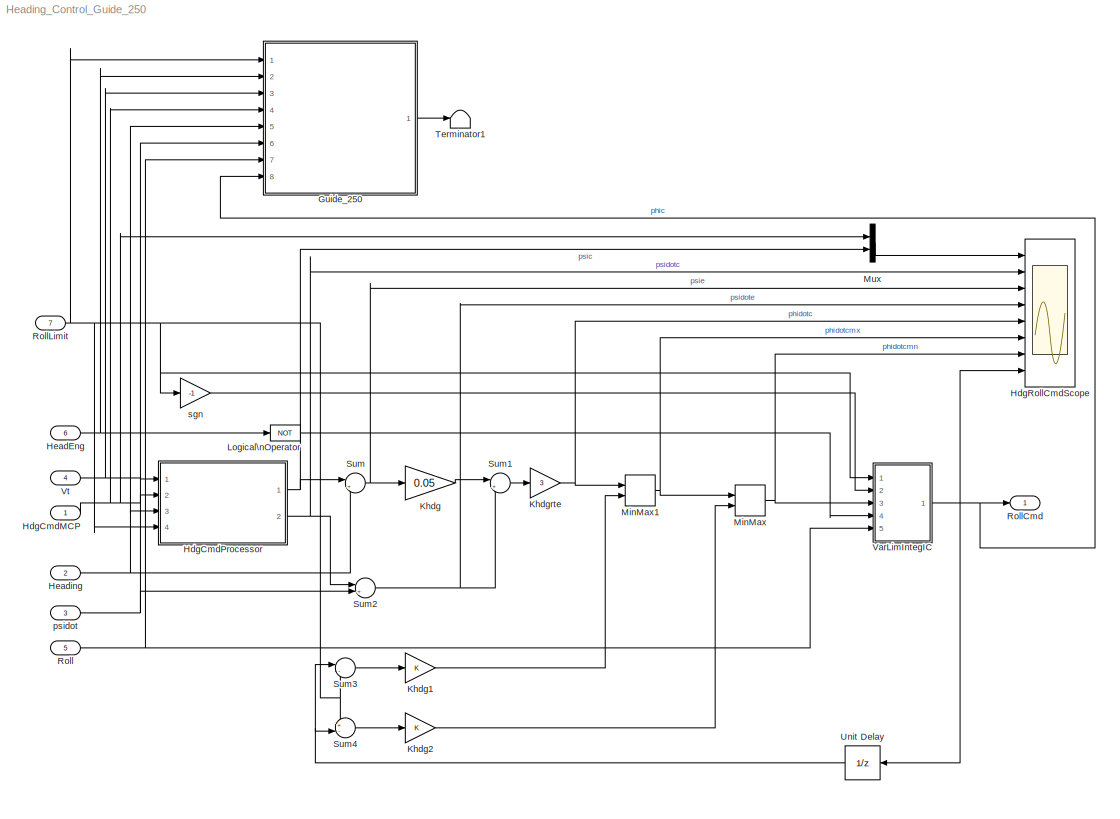
MODEL Heading_Control_Guide_250
KIND model
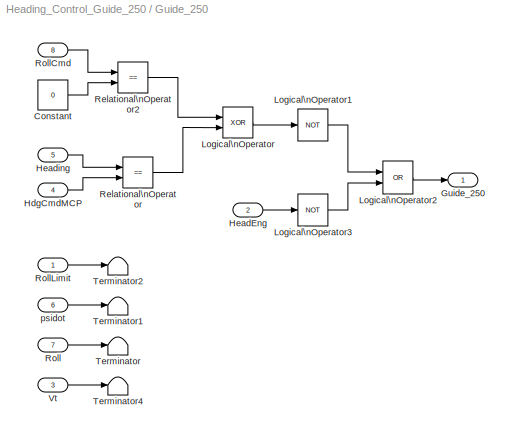
BLOCK [SubSystem] Guide_250
  Ports = [8, 1]
  RequestExecContextInheritance = off
  SID = 8
  TreatAsAtomicUnit = on
  Variant = off
BLOCK [Constant] Guide_250/Constant
  SID = 17
  Value = 0
BLOCK [Outport] Guide_250/Guide_250
  IconDisplay = Port number
  SID = 28
BLOCK [Inport] Guide_250/HdgCmdMCP
  IconDisplay = Port number
  Port = 4
  SID = 12
BLOCK [Inport] Guide_250/HeadEng
  IconDisplay = Port number
  Port = 2
  SID = 10
BLOCK [Inport] Guide_250/Heading
  IconDisplay = Port number
  Port = 5
  SID = 13
BLOCK [Logic] Guide_250/Logical\nOperator
  AllPortsSameDT = off
  Operator = XOR
  OutDataTypeStr = boolean
  Ports = [2, 1]
  SID = 18
BLOCK [Logic] Guide_250/Logical\nOperator1
  AllPortsSameDT = off
  Operator = NOT
  OutDataTypeStr = boolean
  Ports = [1, 1]
  SID = 19
BLOCK [Logic] Guide_250/Logical\nOperator2
  AllPortsSameDT = off
  Operator = OR
  OutDataTypeStr = boolean
  Ports = [2, 1]
  SID = 20
BLOCK [Logic] Guide_250/Logical\nOperator3
  AllPortsSameDT = off
  Operator = NOT
  OutDataTypeStr = boolean
  Ports = [1, 1]
  SID = 21
BLOCK [RelationalOperator] Guide_250/Relational\nOperator
  InputSameDT = off
  Operator = ==
  OutDataTypeStr = boolean
  Ports = [2, 1]
  SID = 22
BLOCK [RelationalOperator] Guide_250/Relational\nOperator2
  InputSameDT = off
  Operator = ==
  OutDataTypeStr = boolean
  Ports = [2, 1]
  SID = 23
BLOCK [Inport] Guide_250/Roll
  IconDisplay = Port number
  Port = 7
  SID = 15
BLOCK [Inport] Guide_250/RollCmd
  IconDisplay = Port number
  Port = 8
  SID = 16
BLOCK [Inport] Guide_250/RollLimit
  IconDisplay = Port number
  SID = 9
BLOCK [Terminator] Guide_250/Terminator
  SID = 24
BLOCK [Terminator] Guide_250/Terminator1
  SID = 25
BLOCK [Terminator] Guide_250/Terminator2
  SID = 26
BLOCK [Terminator] Guide_250/Terminator4
  SID = 27
BLOCK [Inport] Guide_250/Vt
  IconDisplay = Port number
  Port = 3
  SID = 11
BLOCK [Inport] Guide_250/psidot
  IconDisplay = Port number
  Port = 6
  SID = 14
BLOCK [Inport] HdgCmdMCP
  IconDisplay = Port number
  SID = 1
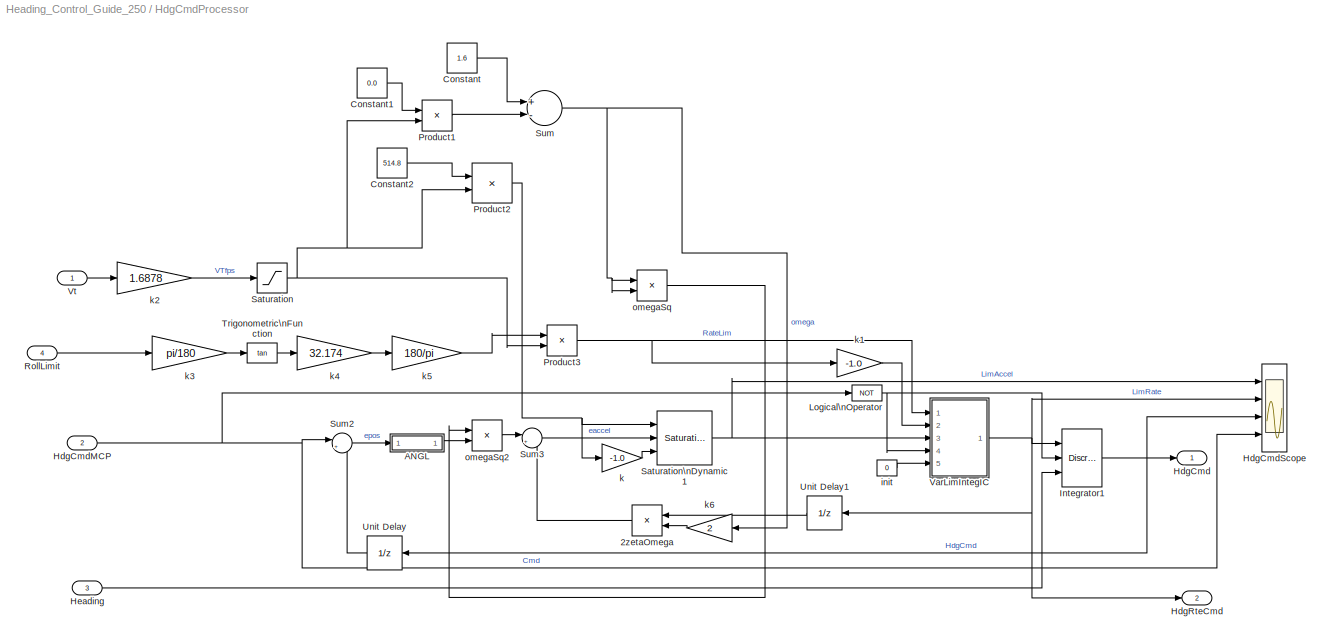
BLOCK [SubSystem] HdgCmdProcessor
  Ports = [4, 2]
  RequestExecContextInheritance = off
  SID = 29
  Variant = off
BLOCK [Product] HdgCmdProcessor/2zetaOmega
  InputSameDT = off
  OutDataTypeStr = Inherit: Inherit via internal rule
  Ports = [2, 1]
  SID = 34
  SaturateOnIntegerOverflow = off
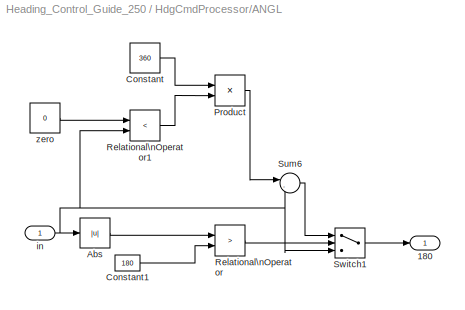
BLOCK [SubSystem] HdgCmdProcessor/ANGL
  Ports = [1, 1]
  RequestExecContextInheritance = off
  SID = 35
  Variant = off
BLOCK [Outport] HdgCmdProcessor/ANGL/180
  IconDisplay = Port number
  SID = 46
BLOCK [Abs] HdgCmdProcessor/ANGL/Abs
  SID = 37
  SaturateOnIntegerOverflow = off
BLOCK [Constant] HdgCmdProcessor/ANGL/Constant
  SID = 38
  Value = 360
BLOCK [Constant] HdgCmdProcessor/ANGL/Constant1
  SID = 39
  Value = 180
BLOCK [Product] HdgCmdProcessor/ANGL/Product
  InputSameDT = off
  OutDataTypeStr = Inherit: Inherit via internal rule
  Ports = [2, 1]
  SID = 40
  SaturateOnIntegerOverflow = off
BLOCK [RelationalOperator] HdgCmdProcessor/ANGL/Relational\nOperator
  InputSameDT = off
  Operator = >
  Ports = [2, 1]
  SID = 41
BLOCK [RelationalOperator] HdgCmdProcessor/ANGL/Relational\nOperator1
  InputSameDT = off
  Operator = <
  OutDataTypeStr = boolean
  Ports = [2, 1]
  SID = 42
BLOCK [Sum] HdgCmdProcessor/ANGL/Sum6
  IconShape = round
  InputSameDT = off
  Inputs = |-+
  OutDataTypeStr = Inherit: Inherit via internal rule
  Ports = [2, 1]
  SID = 43
BLOCK [Switch] HdgCmdProcessor/ANGL/Switch1
  InputSameDT = off
  SID = 44
  Threshold = 0.1
BLOCK [Inport] HdgCmdProcessor/ANGL/in
  IconDisplay = Port number
  SID = 36
BLOCK [Constant] HdgCmdProcessor/ANGL/zero
  SID = 45
  Value = 0
BLOCK [Constant] HdgCmdProcessor/Constant
  SID = 47
  Value = 1.6
BLOCK [Constant] HdgCmdProcessor/Constant1
  SID = 48
  Value = 0.0
BLOCK [Constant] HdgCmdProcessor/Constant2
  SID = 49
  Value = 514.8
BLOCK [Outport] HdgCmdProcessor/HdgCmd
  IconDisplay = Port number
  SID = 93
BLOCK [Inport] HdgCmdProcessor/HdgCmdMCP
  IconDisplay = Port number
  Port = 2
  SID = 31
BLOCK [Scope] HdgCmdProcessor/HdgCmdScope
  NumInputPorts = 4
  Ports = [4]
  SID = 50
  ScopeSpecificationString = C++SS(StrPVP('Location','[661, 662, 1361, 1168]'),StrPVP('Open','off'),MxPVP('AxesTitles',24,'struct(''axes1'',''%<SignalLabel>'',''axes2'',''%<SignalLabel>'',''axes3'',''%<SignalLabel>'',''axes4'',''%<SignalLabel>'')'),StrPVP('YMin','-2~-4~-40~-40'),StrPVP('YMax','2~4~40~40'),StrPVP('SaveName','ScopeData6'),StrPVP('DataFormat','StructureWithTime'),StrPVP('LimitDataPoints','off'),StrPVP('BlockPara...<+81ch>
BLOCK [Outport] HdgCmdProcessor/HdgRteCmd
  IconDisplay = Port number
  Port = 2
  SID = 94
BLOCK [Inport] HdgCmdProcessor/Heading
  IconDisplay = Port number
  Port = 3
  SID = 32
BLOCK [DiscreteIntegrator] HdgCmdProcessor/Integrator1
  ExternalReset = level
  ICPrevOutput = DiscIntNeverNeededParam
  ICPrevScaledInput = DiscIntNeverNeededParam
  InitialConditionSource = external
  Ports = [3, 1]
  SID = 51
  SampleTime = 1.0
BLOCK [Logic] HdgCmdProcessor/Logical\nOperator
  AllPortsSameDT = off
  Operator = NOT
  OutDataTypeStr = boolean
  Ports = [1, 1]
  SID = 52
BLOCK [Product] HdgCmdProcessor/Product1
  InputSameDT = off
  OutDataTypeStr = Inherit: Inherit via internal rule
  Ports = [2, 1]
  SID = 53
  SaturateOnIntegerOverflow = off
BLOCK [Product] HdgCmdProcessor/Product2
  InputSameDT = off
  Inputs = */
  OutDataTypeStr = Inherit: Inherit via internal rule
  Ports = [2, 1]
  SID = 54
  SaturateOnIntegerOverflow = off
BLOCK [Product] HdgCmdProcessor/Product3
  InputSameDT = off
  Inputs = /*
  OutDataTypeStr = Inherit: Inherit via internal rule
  Ports = [2, 1]
  SID = 55
  SaturateOnIntegerOverflow = off
BLOCK [Inport] HdgCmdProcessor/RollLimit
  IconDisplay = Port number
  Port = 4
  SID = 33
BLOCK [Saturate] HdgCmdProcessor/Saturation
  InputPortMap = u0
  LowerLimit = 0.0001
  Ports = [1, 1]
  SID = 56
  UpperLimit = 1000
BLOCK [Reference] HdgCmdProcessor/Saturation\nDynamic1  REF=simulink/Discontinuities/Saturation\nDynamic
  DoSatur = off
  LockScale = off
  OutDataType = fixdt(1, 16)
  OutDataTypeStr = Inherit: Same as second input
  OutMax = []
  OutMin = []
  OutScaling = 2^-10
  OutputDataTypeScalingMode = Same as second input
  Ports = [3, 1]
  RndMeth = Floor
  SID = 57
  SourceBlock = simulink/Discontinuities/Saturation\nDynamic
  SourceType = Saturation Dynamic
BLOCK [Sum] HdgCmdProcessor/Sum
  InputSameDT = off
  Inputs = +-
  OutDataTypeStr = Inherit: Inherit via internal rule
  Ports = [2, 1]
  SID = 58
  SaturateOnIntegerOverflow = off
BLOCK [Sum] HdgCmdProcessor/Sum2
  IconShape = round
  InputSameDT = off
  Inputs = |+-
  OutDataTypeStr = Inherit: Inherit via internal rule
  Ports = [2, 1]
  SID = 59
  SaturateOnIntegerOverflow = off
BLOCK [Sum] HdgCmdProcessor/Sum3
  IconShape = round
  InputSameDT = off
  Inputs = |+-
  OutDataTypeStr = Inherit: Inherit via internal rule
  Ports = [2, 1]
  SID = 60
  SaturateOnIntegerOverflow = off
BLOCK [Trigonometry] HdgCmdProcessor/Trigonometric\nFunction
  Operator = tan
  Ports = [1, 1]
  SID = 61
BLOCK [UnitDelay] HdgCmdProcessor/Unit Delay
  InputProcessing = Elements as channels (sample based)
  SID = 134
  SampleTime = -1
BLOCK [UnitDelay] HdgCmdProcessor/Unit Delay1
  InputProcessing = Elements as channels (sample based)
  SID = 135
  SampleTime = -1
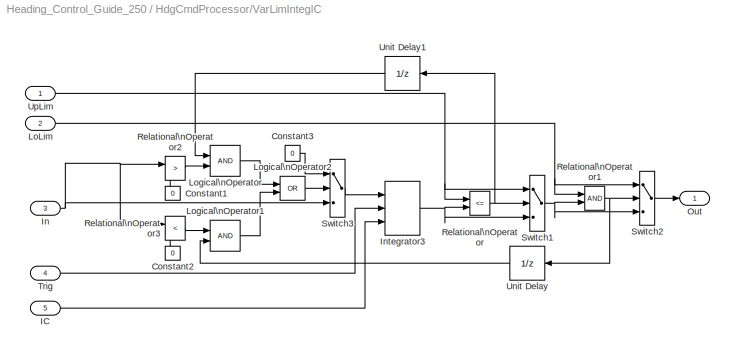
BLOCK [SubSystem] HdgCmdProcessor/VarLimIntegIC
  Ports = [5, 1]
  RequestExecContextInheritance = off
  SID = 62
  Variant = off
BLOCK [Constant] HdgCmdProcessor/VarLimIntegIC/Constant1
  SID = 68
  Value = 0
BLOCK [Constant] HdgCmdProcessor/VarLimIntegIC/Constant2
  SID = 69
  Value = 0
BLOCK [Constant] HdgCmdProcessor/VarLimIntegIC/Constant3
  SID = 70
  Value = 0
BLOCK [Inport] HdgCmdProcessor/VarLimIntegIC/IC
  IconDisplay = Port number
  Port = 5
  SID = 67
BLOCK [Inport] HdgCmdProcessor/VarLimIntegIC/In
  IconDisplay = Port number
  Port = 3
  SID = 65
BLOCK [DiscreteIntegrator] HdgCmdProcessor/VarLimIntegIC/Integrator3
  ExternalReset = level
  ICPrevOutput = DiscIntNeverNeededParam
  ICPrevScaledInput = DiscIntNeverNeededParam
  InitialConditionSource = external
  Ports = [3, 1]
  SID = 71
  SampleTime = 1.0
BLOCK [Inport] HdgCmdProcessor/VarLimIntegIC/LoLim
  IconDisplay = Port number
  Port = 2
  SID = 64
BLOCK [Logic] HdgCmdProcessor/VarLimIntegIC/Logical\nOperator
  AllPortsSameDT = off
  Ports = [2, 1]
  SID = 72
BLOCK [Logic] HdgCmdProcessor/VarLimIntegIC/Logical\nOperator1
  AllPortsSameDT = off
  Ports = [2, 1]
  SID = 73
BLOCK [Logic] HdgCmdProcessor/VarLimIntegIC/Logical\nOperator2
  AllPortsSameDT = off
  Operator = OR
  Ports = [2, 1]
  SID = 74
BLOCK [Outport] HdgCmdProcessor/VarLimIntegIC/Out
  IconDisplay = Port number
  SID = 82
BLOCK [RelationalOperator] HdgCmdProcessor/VarLimIntegIC/Relational\nOperator
  InputSameDT = off
  Operator = <=
  Ports = [2, 1]
  SID = 75
BLOCK [RelationalOperator] HdgCmdProcessor/VarLimIntegIC/Relational\nOperator1
  InputSameDT = off
  Ports = [2, 1]
  SID = 76
BLOCK [RelationalOperator] HdgCmdProcessor/VarLimIntegIC/Relational\nOperator2
  InputSameDT = off
  Operator = >
  Ports = [2, 1]
  SID = 77
BLOCK [RelationalOperator] HdgCmdProcessor/VarLimIntegIC/Relational\nOperator3
  InputSameDT = off
  Operator = <
  Ports = [2, 1]
  SID = 78
BLOCK [Switch] HdgCmdProcessor/VarLimIntegIC/Switch1
  SID = 79
  Threshold = 0.5
BLOCK [Switch] HdgCmdProcessor/VarLimIntegIC/Switch2
  SID = 80
  Threshold = 0.5
BLOCK [Switch] HdgCmdProcessor/VarLimIntegIC/Switch3
  SID = 81
  Threshold = 0.5
BLOCK [Inport] HdgCmdProcessor/VarLimIntegIC/Trig
  IconDisplay = Port number
  Port = 4
  SID = 66
BLOCK [UnitDelay] HdgCmdProcessor/VarLimIntegIC/Unit Delay
  InputProcessing = Elements as channels (sample based)
  SID = 136
  SampleTime = -1
BLOCK [UnitDelay] HdgCmdProcessor/VarLimIntegIC/Unit Delay1
  InputProcessing = Elements as channels (sample based)
  SID = 137
  SampleTime = -1
BLOCK [Inport] HdgCmdProcessor/VarLimIntegIC/UpLim
  IconDisplay = Port number
  SID = 63
BLOCK [Inport] HdgCmdProcessor/Vt
  IconDisplay = Port number
  SID = 30
BLOCK [Constant] HdgCmdProcessor/init
  SID = 83
  Value = 0
BLOCK [Gain] HdgCmdProcessor/k
  Gain = -1.0
  OutDataTypeStr = Inherit: Inherit via internal rule
  ParamDataTypeStr = Inherit: Inherit via internal rule
  SID = 84
  SaturateOnIntegerOverflow = off
BLOCK [Gain] HdgCmdProcessor/k1
  Gain = -1.0
  OutDataTypeStr = Inherit: Inherit via internal rule
  ParamDataTypeStr = Inherit: Inherit via internal rule
  SID = 85
  SaturateOnIntegerOverflow = off
BLOCK [Gain] HdgCmdProcessor/k2
  Gain = 1.6878
  OutDataTypeStr = Inherit: Inherit via internal rule
  ParamDataTypeStr = Inherit: Inherit via internal rule
  SID = 86
  SaturateOnIntegerOverflow = off
BLOCK [Gain] HdgCmdProcessor/k3
  Gain = pi/180
  OutDataTypeStr = Inherit: Inherit via internal rule
  ParamDataTypeStr = Inherit: Inherit via internal rule
  SID = 87
  SaturateOnIntegerOverflow = off
BLOCK [Gain] HdgCmdProcessor/k4
  Gain = 32.174
  OutDataTypeStr = Inherit: Inherit via internal rule
  ParamDataTypeStr = Inherit: Inherit via internal rule
  SID = 88
  SaturateOnIntegerOverflow = off
BLOCK [Gain] HdgCmdProcessor/k5
  Gain = 180/pi
  OutDataTypeStr = Inherit: Inherit via internal rule
  ParamDataTypeStr = Inherit: Inherit via internal rule
  SID = 89
  SaturateOnIntegerOverflow = off
BLOCK [Gain] HdgCmdProcessor/k6
  Gain = 2
  OutDataTypeStr = Inherit: Inherit via internal rule
  ParamDataTypeStr = Inherit: Inherit via internal rule
  SID = 90
  SaturateOnIntegerOverflow = off
BLOCK [Product] HdgCmdProcessor/omegaSq
  InputSameDT = off
  OutDataTypeStr = Inherit: Inherit via internal rule
  Ports = [2, 1]
  SID = 91
  SaturateOnIntegerOverflow = off
BLOCK [Product] HdgCmdProcessor/omegaSq2
  InputSameDT = off
  OutDataTypeStr = Inherit: Inherit via internal rule
  Ports = [2, 1]
  SID = 92
  SaturateOnIntegerOverflow = off
BLOCK [Scope] HdgRollCmdScope
  NumInputPorts = 8
  Ports = [8]
  SID = 95
  ScopeSpecificationString = C++SS(StrPVP('Location','[803, 84, 1609, 1060]'),StrPVP('Open','off'),MxPVP('AxesTitles',24,'struct(''axes1'',''HdgCmdMCP,  psic'',''axes2'',''%<SignalLabel>'',''axes3'',''%<SignalLabel>'',''axes4'',''%<SignalLabel>'',''axes5'',''%<SignalLabel>'',''axes6'',''%<SignalLabel>'',''axes7'',''%<SignalLabel>'',''axes8'',''%<SignalLabel>'')'),StrPVP('YMin','-30~-30~-10~-10~-4~-10~0~-5'),StrPVP('YMax','30~...<+191ch>
BLOCK [Inport] HeadEng
  IconDisplay = Port number
  Port = 6
  SID = 6
BLOCK [Inport] Heading
  IconDisplay = Port number
  Port = 2
  SID = 2
BLOCK [Gain] Khdg
  Gain = 0.05
  OutDataTypeStr = Inherit: Inherit via internal rule
  ParamDataTypeStr = Inherit: Inherit via internal rule
  SID = 96
  SaturateOnIntegerOverflow = off
BLOCK [Gain] Khdg1
  OutDataTypeStr = Inherit: Inherit via internal rule
  ParamDataTypeStr = Inherit: Inherit via internal rule
  SID = 97
  SaturateOnIntegerOverflow = off
BLOCK [Gain] Khdg2
  OutDataTypeStr = Inherit: Inherit via internal rule
  ParamDataTypeStr = Inherit: Inherit via internal rule
  SID = 98
  SaturateOnIntegerOverflow = off
BLOCK [Gain] Khdgrte
  Gain = 3
  OutDataTypeStr = Inherit: Inherit via internal rule
  ParamDataTypeStr = Inherit: Inherit via internal rule
  SID = 99
  SaturateOnIntegerOverflow = off
BLOCK [Logic] Logical\nOperator
  AllPortsSameDT = off
  Operator = NOT
  OutDataTypeStr = boolean
  Ports = [1, 1]
  SID = 100
BLOCK [MinMax] MinMax
  InputSameDT = off
  Inputs = 2
  Ports = [2, 1]
  SID = 101
  SaturateOnIntegerOverflow = off
BLOCK [MinMax] MinMax1
  Function = max
  InputSameDT = off
  Inputs = 2
  Ports = [2, 1]
  SID = 102
  SaturateOnIntegerOverflow = off
BLOCK [Mux] Mux
  DisplayOption = bar
  Inputs = 2
  Ports = [2, 1]
  SID = 103
BLOCK [Inport] Roll
  IconDisplay = Port number
  Port = 5
  SID = 5
BLOCK [Outport] RollCmd
  IconDisplay = Port number
  SID = 132
BLOCK [Inport] RollLimit
  IconDisplay = Port number
  Port = 7
  SID = 7
BLOCK [Sum] Sum
  IconShape = round
  InputSameDT = off
  Inputs = |+-
  OutDataTypeStr = Inherit: Inherit via internal rule
  Ports = [2, 1]
  SID = 104
  SaturateOnIntegerOverflow = off
BLOCK [Sum] Sum1
  IconShape = round
  InputSameDT = off
  Inputs = |++
  OutDataTypeStr = Inherit: Inherit via internal rule
  Ports = [2, 1]
  SID = 105
  SaturateOnIntegerOverflow = off
BLOCK [Sum] Sum2
  IconShape = round
  InputSameDT = off
  Inputs = |+-
  OutDataTypeStr = Inherit: Inherit via internal rule
  Ports = [2, 1]
  SID = 106
  SaturateOnIntegerOverflow = off
BLOCK [Sum] Sum3
  IconShape = round
  InputSameDT = off
  Inputs = |--
  OutDataTypeStr = Inherit: Inherit via internal rule
  Ports = [2, 1]
  SID = 107
  SaturateOnIntegerOverflow = off
BLOCK [Sum] Sum4
  IconShape = round
  InputSameDT = off
  Inputs = +-|
  OutDataTypeStr = Inherit: Inherit via internal rule
  Ports = [2, 1]
  SID = 108
  SaturateOnIntegerOverflow = off
BLOCK [Terminator] Terminator1
  SID = 109
BLOCK [UnitDelay] Unit Delay
  InputProcessing = Elements as channels (sample based)
  SID = 133
  SampleTime = -1
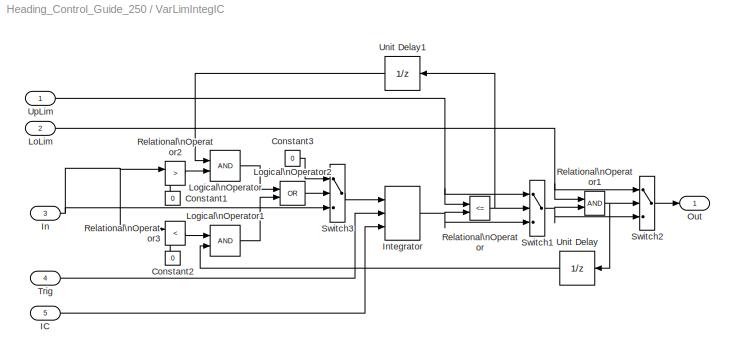
BLOCK [SubSystem] VarLimIntegIC
  Ports = [5, 1]
  RequestExecContextInheritance = off
  SID = 110
  Variant = off
BLOCK [Constant] VarLimIntegIC/Constant1
  SID = 116
  Value = 0
BLOCK [Constant] VarLimIntegIC/Constant2
  SID = 117
  Value = 0
BLOCK [Constant] VarLimIntegIC/Constant3
  SID = 118
  Value = 0
BLOCK [Inport] VarLimIntegIC/IC
  IconDisplay = Port number
  Port = 5
  SID = 115
BLOCK [Inport] VarLimIntegIC/In
  IconDisplay = Port number
  Port = 3
  SID = 113
BLOCK [DiscreteIntegrator] VarLimIntegIC/Integrator
  ExternalReset = level
  ICPrevOutput = DiscIntNeverNeededParam
  ICPrevScaledInput = DiscIntNeverNeededParam
  InitialConditionSource = external
  Ports = [3, 1]
  SID = 119
  SampleTime = 1.0
BLOCK [Inport] VarLimIntegIC/LoLim
  IconDisplay = Port number
  Port = 2
  SID = 112
BLOCK [Logic] VarLimIntegIC/Logical\nOperator
  AllPortsSameDT = off
  Ports = [2, 1]
  SID = 120
BLOCK [Logic] VarLimIntegIC/Logical\nOperator1
  AllPortsSameDT = off
  Ports = [2, 1]
  SID = 121
BLOCK [Logic] VarLimIntegIC/Logical\nOperator2
  AllPortsSameDT = off
  Operator = OR
  Ports = [2, 1]
  SID = 122
BLOCK [Outport] VarLimIntegIC/Out
  IconDisplay = Port number
  SID = 130
BLOCK [RelationalOperator] VarLimIntegIC/Relational\nOperator
  InputSameDT = off
  Operator = <=
  Ports = [2, 1]
  SID = 123
BLOCK [RelationalOperator] VarLimIntegIC/Relational\nOperator1
  InputSameDT = off
  Ports = [2, 1]
  SID = 124
BLOCK [RelationalOperator] VarLimIntegIC/Relational\nOperator2
  InputSameDT = off
  Operator = >
  Ports = [2, 1]
  SID = 125
BLOCK [RelationalOperator] VarLimIntegIC/Relational\nOperator3
  InputSameDT = off
  Operator = <
  Ports = [2, 1]
  SID = 126
BLOCK [Switch] VarLimIntegIC/Switch1
  SID = 127
  Threshold = 0.5
BLOCK [Switch] VarLimIntegIC/Switch2
  SID = 128
  Threshold = 0.5
BLOCK [Switch] VarLimIntegIC/Switch3
  SID = 129
  Threshold = 0.5
BLOCK [Inport] VarLimIntegIC/Trig
  IconDisplay = Port number
  Port = 4
  SID = 114
BLOCK [UnitDelay] VarLimIntegIC/Unit Delay
  InputProcessing = Elements as channels (sample based)
  SID = 138
  SampleTime = -1
BLOCK [UnitDelay] VarLimIntegIC/Unit Delay1
  InputProcessing = Elements as channels (sample based)
  SID = 139
  SampleTime = -1
BLOCK [Inport] VarLimIntegIC/UpLim
  IconDisplay = Port number
  SID = 111
BLOCK [Inport] Vt
  IconDisplay = Port number
  Port = 4
  SID = 4
BLOCK [Inport] psidot
  IconDisplay = Port number
  Port = 3
  SID = 3
BLOCK [Gain] sgn
  Gain = -1
  OutDataTypeStr = Inherit: Inherit via internal rule
  ParamDataTypeStr = Inherit: Inherit via internal rule
  SID = 131
  SaturateOnIntegerOverflow = off
LINE Guide_250/Constant:1 -> Guide_250/Relational\nOperator2:2
LINE Guide_250/HdgCmdMCP:1 -> Guide_250/Relational\nOperator:2
LINE Guide_250/HeadEng:1 -> Guide_250/Logical\nOperator3:1
LINE Guide_250/Heading:1 -> Guide_250/Relational\nOperator:1
LINE Guide_250/Logical\nOperator1:1 -> Guide_250/Logical\nOperator2:1
LINE Guide_250/Logical\nOperator2:1 -> Guide_250/Guide_250:1
LINE Guide_250/Logical\nOperator3:1 -> Guide_250/Logical\nOperator2:2
LINE Guide_250/Logical\nOperator:1 -> Guide_250/Logical\nOperator1:1
LINE Guide_250/Relational\nOperator2:1 -> Guide_250/Logical\nOperator:1
LINE Guide_250/Relational\nOperator:1 -> Guide_250/Logical\nOperator:2
LINE Guide_250/Roll:1 -> Guide_250/Terminator:1
LINE Guide_250/RollCmd:1 -> Guide_250/Relational\nOperator2:1
LINE Guide_250/RollLimit:1 -> Guide_250/Terminator2:1
LINE Guide_250/Vt:1 -> Guide_250/Terminator4:1
LINE Guide_250/psidot:1 -> Guide_250/Terminator1:1
LINE Guide_250:1 -> Terminator1:1
NET HdgCmdMCP:1 -> Guide_250:4, HdgCmdProcessor:2, Mux:1
LINE HdgCmdProcessor/2zetaOmega:1 -> HdgCmdProcessor/Sum3:2
LINE HdgCmdProcessor/ANGL/Abs:1 -> HdgCmdProcessor/ANGL/Relational\nOperator:1
LINE HdgCmdProcessor/ANGL/Constant1:1 -> HdgCmdProcessor/ANGL/Relational\nOperator:2
LINE HdgCmdProcessor/ANGL/Constant:1 -> HdgCmdProcessor/ANGL/Product:1
LINE HdgCmdProcessor/ANGL/Product:1 -> HdgCmdProcessor/ANGL/Sum6:1
LINE HdgCmdProcessor/ANGL/Relational\nOperator1:1 -> HdgCmdProcessor/ANGL/Product:2
LINE HdgCmdProcessor/ANGL/Relational\nOperator:1 -> HdgCmdProcessor/ANGL/Switch1:2
LINE HdgCmdProcessor/ANGL/Sum6:1 -> HdgCmdProcessor/ANGL/Switch1:1
LINE HdgCmdProcessor/ANGL/Switch1:1 -> HdgCmdProcessor/ANGL/180:1
NET HdgCmdProcessor/ANGL/in:1 -> HdgCmdProcessor/ANGL/Abs:1, HdgCmdProcessor/ANGL/Relational\nOperator1:2, HdgCmdProcessor/ANGL/Sum6:2, HdgCmdProcessor/ANGL/Switch1:3
LINE HdgCmdProcessor/ANGL/zero:1 -> HdgCmdProcessor/ANGL/Relational\nOperator1:1
LINE HdgCmdProcessor/ANGL:1 -> HdgCmdProcessor/omegaSq2:2
LINE HdgCmdProcessor/Constant1:1 -> HdgCmdProcessor/Product1:1
LINE HdgCmdProcessor/Constant2:1 -> HdgCmdProcessor/Product2:1
LINE HdgCmdProcessor/Constant:1 -> HdgCmdProcessor/Sum:1
NET HdgCmdProcessor/HdgCmdMCP:1 -> HdgCmdProcessor/HdgCmdScope:4, HdgCmdProcessor/Logical\nOperator:1, HdgCmdProcessor/Sum2:1
LINE HdgCmdProcessor/Heading:1 -> HdgCmdProcessor/Integrator1:3
NET HdgCmdProcessor/Integrator1:1 -> HdgCmdProcessor/HdgCmd:1, HdgCmdProcessor/HdgCmdScope:3, HdgCmdProcessor/Unit Delay:1
NET HdgCmdProcessor/Logical\nOperator:1 -> HdgCmdProcessor/Integrator1:2, HdgCmdProcessor/VarLimIntegIC:4
LINE HdgCmdProcessor/Product1:1 -> HdgCmdProcessor/Sum:2
NET HdgCmdProcessor/Product2:1 -> HdgCmdProcessor/Saturation\nDynamic1:1, HdgCmdProcessor/k:1
NET HdgCmdProcessor/Product3:1 -> HdgCmdProcessor/VarLimIntegIC:1, HdgCmdProcessor/k1:1
LINE HdgCmdProcessor/RollLimit:1 -> HdgCmdProcessor/k3:1
NET HdgCmdProcessor/Saturation:1 -> HdgCmdProcessor/Product1:2, HdgCmdProcessor/Product2:2, HdgCmdProcessor/Product3:2
NET HdgCmdProcessor/Saturation\nDynamic1:1 -> HdgCmdProcessor/HdgCmdScope:1, HdgCmdProcessor/VarLimIntegIC:3
LINE HdgCmdProcessor/Sum2:1 -> HdgCmdProcessor/ANGL:1
LINE HdgCmdProcessor/Sum3:1 -> HdgCmdProcessor/Saturation\nDynamic1:2
NET HdgCmdProcessor/Sum:1 -> HdgCmdProcessor/k6:1, HdgCmdProcessor/omegaSq:1, HdgCmdProcessor/omegaSq:2
LINE HdgCmdProcessor/Trigonometric\nFunction:1 -> HdgCmdProcessor/k4:1
LINE HdgCmdProcessor/Unit Delay1:1 -> HdgCmdProcessor/2zetaOmega:1
LINE HdgCmdProcessor/Unit Delay:1 -> HdgCmdProcessor/Sum2:2
LINE HdgCmdProcessor/VarLimIntegIC/Constant1:1 -> HdgCmdProcessor/VarLimIntegIC/Relational\nOperator2:2
LINE HdgCmdProcessor/VarLimIntegIC/Constant2:1 -> HdgCmdProcessor/VarLimIntegIC/Relational\nOperator3:2
LINE HdgCmdProcessor/VarLimIntegIC/Constant3:1 -> HdgCmdProcessor/VarLimIntegIC/Switch3:1
LINE HdgCmdProcessor/VarLimIntegIC/IC:1 -> HdgCmdProcessor/VarLimIntegIC/Integrator3:3
NET HdgCmdProcessor/VarLimIntegIC/In:1 -> HdgCmdProcessor/VarLimIntegIC/Relational\nOperator2:1, HdgCmdProcessor/VarLimIntegIC/Relational\nOperator3:1, HdgCmdProcessor/VarLimIntegIC/Switch3:3
NET HdgCmdProcessor/VarLimIntegIC/Integrator3:1 -> HdgCmdProcessor/VarLimIntegIC/Relational\nOperator:2, HdgCmdProcessor/VarLimIntegIC/Switch1:3
NET HdgCmdProcessor/VarLimIntegIC/LoLim:1 -> HdgCmdProcessor/VarLimIntegIC/Relational\nOperator1:1, HdgCmdProcessor/VarLimIntegIC/Switch2:1
LINE HdgCmdProcessor/VarLimIntegIC/Logical\nOperator1:1 -> HdgCmdProcessor/VarLimIntegIC/Logical\nOperator2:2
LINE HdgCmdProcessor/VarLimIntegIC/Logical\nOperator2:1 -> HdgCmdProcessor/VarLimIntegIC/Switch3:2
LINE HdgCmdProcessor/VarLimIntegIC/Logical\nOperator:1 -> HdgCmdProcessor/VarLimIntegIC/Logical\nOperator2:1
NET HdgCmdProcessor/VarLimIntegIC/Relational\nOperator1:1 -> HdgCmdProcessor/VarLimIntegIC/Switch2:2, HdgCmdProcessor/VarLimIntegIC/Unit Delay:1
LINE HdgCmdProcessor/VarLimIntegIC/Relational\nOperator2:1 -> HdgCmdProcessor/VarLimIntegIC/Logical\nOperator:2
LINE HdgCmdProcessor/VarLimIntegIC/Relational\nOperator3:1 -> HdgCmdProcessor/VarLimIntegIC/Logical\nOperator1:1
NET HdgCmdProcessor/VarLimIntegIC/Relational\nOperator:1 -> HdgCmdProcessor/VarLimIntegIC/Switch1:2, HdgCmdProcessor/VarLimIntegIC/Unit Delay1:1
NET HdgCmdProcessor/VarLimIntegIC/Switch1:1 -> HdgCmdProcessor/VarLimIntegIC/Relational\nOperator1:2, HdgCmdProcessor/VarLimIntegIC/Switch2:3
LINE HdgCmdProcessor/VarLimIntegIC/Switch2:1 -> HdgCmdProcessor/VarLimIntegIC/Out:1
LINE HdgCmdProcessor/VarLimIntegIC/Switch3:1 -> HdgCmdProcessor/VarLimIntegIC/Integrator3:1
LINE HdgCmdProcessor/VarLimIntegIC/Trig:1 -> HdgCmdProcessor/VarLimIntegIC/Integrator3:2
LINE HdgCmdProcessor/VarLimIntegIC/Unit Delay1:1 -> HdgCmdProcessor/VarLimIntegIC/Logical\nOperator:1
LINE HdgCmdProcessor/VarLimIntegIC/Unit Delay:1 -> HdgCmdProcessor/VarLimIntegIC/Logical\nOperator1:2
NET HdgCmdProcessor/VarLimIntegIC/UpLim:1 -> HdgCmdProcessor/VarLimIntegIC/Relational\nOperator:1, HdgCmdProcessor/VarLimIntegIC/Switch1:1
NET HdgCmdProcessor/VarLimIntegIC:1 -> HdgCmdProcessor/HdgCmdScope:2, HdgCmdProcessor/HdgRteCmd:1, HdgCmdProcessor/Integrator1:1, HdgCmdProcessor/Unit Delay1:1
LINE HdgCmdProcessor/Vt:1 -> HdgCmdProcessor/k2:1
LINE HdgCmdProcessor/init:1 -> HdgCmdProcessor/VarLimIntegIC:5
LINE HdgCmdProcessor/k1:1 -> HdgCmdProcessor/VarLimIntegIC:2
LINE HdgCmdProcessor/k2:1 -> HdgCmdProcessor/Saturation:1
LINE HdgCmdProcessor/k3:1 -> HdgCmdProcessor/Trigonometric\nFunction:1
LINE HdgCmdProcessor/k4:1 -> HdgCmdProcessor/k5:1
LINE HdgCmdProcessor/k5:1 -> HdgCmdProcessor/Product3:1
LINE HdgCmdProcessor/k6:1 -> HdgCmdProcessor/2zetaOmega:2
LINE HdgCmdProcessor/k:1 -> HdgCmdProcessor/Saturation\nDynamic1:3
LINE HdgCmdProcessor/omegaSq2:1 -> HdgCmdProcessor/Sum3:1
LINE HdgCmdProcessor/omegaSq:1 -> HdgCmdProcessor/omegaSq2:1
NET HdgCmdProcessor:1 -> Mux:2, Sum:1
NET HdgCmdProcessor:2 -> HdgRollCmdScope:2, Sum2:1
NET HeadEng:1 -> Guide_250:2, Logical\nOperator:1
NET Heading:1 -> Guide_250:5, HdgCmdProcessor:3, Sum:2
LINE Khdg1:1 -> MinMax1:2
LINE Khdg2:1 -> MinMax:2
LINE Khdg:1 -> Sum1:1
NET Khdgrte:1 -> HdgRollCmdScope:5, MinMax1:1
LINE Logical\nOperator:1 -> VarLimIntegIC:4
NET MinMax1:1 -> HdgRollCmdScope:6, MinMax:1
NET MinMax:1 -> HdgRollCmdScope:7, VarLimIntegIC:3
LINE Mux:1 -> HdgRollCmdScope:1
NET Roll:1 -> Guide_250:7, VarLimIntegIC:5
NET RollLimit:1 -> Guide_250:1, HdgCmdProcessor:4, Sum3:2, Sum4:1, VarLimIntegIC:1, sgn:1
LINE Sum1:1 -> Khdgrte:1
NET Sum2:1 -> HdgRollCmdScope:4, Sum1:2
LINE Sum3:1 -> Khdg1:1
LINE Sum4:1 -> Khdg2:1
NET Sum:1 -> HdgRollCmdScope:3, Khdg:1
NET Unit Delay:1 -> Sum3:1, Sum4:2
LINE VarLimIntegIC/Constant1:1 -> VarLimIntegIC/Relational\nOperator2:2
LINE VarLimIntegIC/Constant2:1 -> VarLimIntegIC/Relational\nOperator3:2
LINE VarLimIntegIC/Constant3:1 -> VarLimIntegIC/Switch3:1
LINE VarLimIntegIC/IC:1 -> VarLimIntegIC/Integrator:3
NET VarLimIntegIC/In:1 -> VarLimIntegIC/Relational\nOperator2:1, VarLimIntegIC/Relational\nOperator3:1, VarLimIntegIC/Switch3:3
NET VarLimIntegIC/Integrator:1 -> VarLimIntegIC/Relational\nOperator:2, VarLimIntegIC/Switch1:3
NET VarLimIntegIC/LoLim:1 -> VarLimIntegIC/Relational\nOperator1:1, VarLimIntegIC/Switch2:1
LINE VarLimIntegIC/Logical\nOperator1:1 -> VarLimIntegIC/Logical\nOperator2:2
LINE VarLimIntegIC/Logical\nOperator2:1 -> VarLimIntegIC/Switch3:2
LINE VarLimIntegIC/Logical\nOperator:1 -> VarLimIntegIC/Logical\nOperator2:1
NET VarLimIntegIC/Relational\nOperator1:1 -> VarLimIntegIC/Switch2:2, VarLimIntegIC/Unit Delay:1
LINE VarLimIntegIC/Relational\nOperator2:1 -> VarLimIntegIC/Logical\nOperator:2
LINE VarLimIntegIC/Relational\nOperator3:1 -> VarLimIntegIC/Logical\nOperator1:1
NET VarLimIntegIC/Relational\nOperator:1 -> VarLimIntegIC/Switch1:2, VarLimIntegIC/Unit Delay1:1
NET VarLimIntegIC/Switch1:1 -> VarLimIntegIC/Relational\nOperator1:2, VarLimIntegIC/Switch2:3
LINE VarLimIntegIC/Switch2:1 -> VarLimIntegIC/Out:1
LINE VarLimIntegIC/Switch3:1 -> VarLimIntegIC/Integrator:1
LINE VarLimIntegIC/Trig:1 -> VarLimIntegIC/Integrator:2
LINE VarLimIntegIC/Unit Delay1:1 -> VarLimIntegIC/Logical\nOperator:1
LINE VarLimIntegIC/Unit Delay:1 -> VarLimIntegIC/Logical\nOperator1:2
NET VarLimIntegIC/UpLim:1 -> VarLimIntegIC/Relational\nOperator:1, VarLimIntegIC/Switch1:1
NET VarLimIntegIC:1 -> Guide_250:8, HdgRollCmdScope:8, RollCmd:1, Unit Delay:1
NET Vt:1 -> Guide_250:3, HdgCmdProcessor:1
NET psidot:1 -> Guide_250:6, Sum2:2
LINE sgn:1 -> VarLimIntegIC:2
note: NET lines group one-source signal fan-out (src -> all destinations, sorted); 1:1 wires keep LINE
